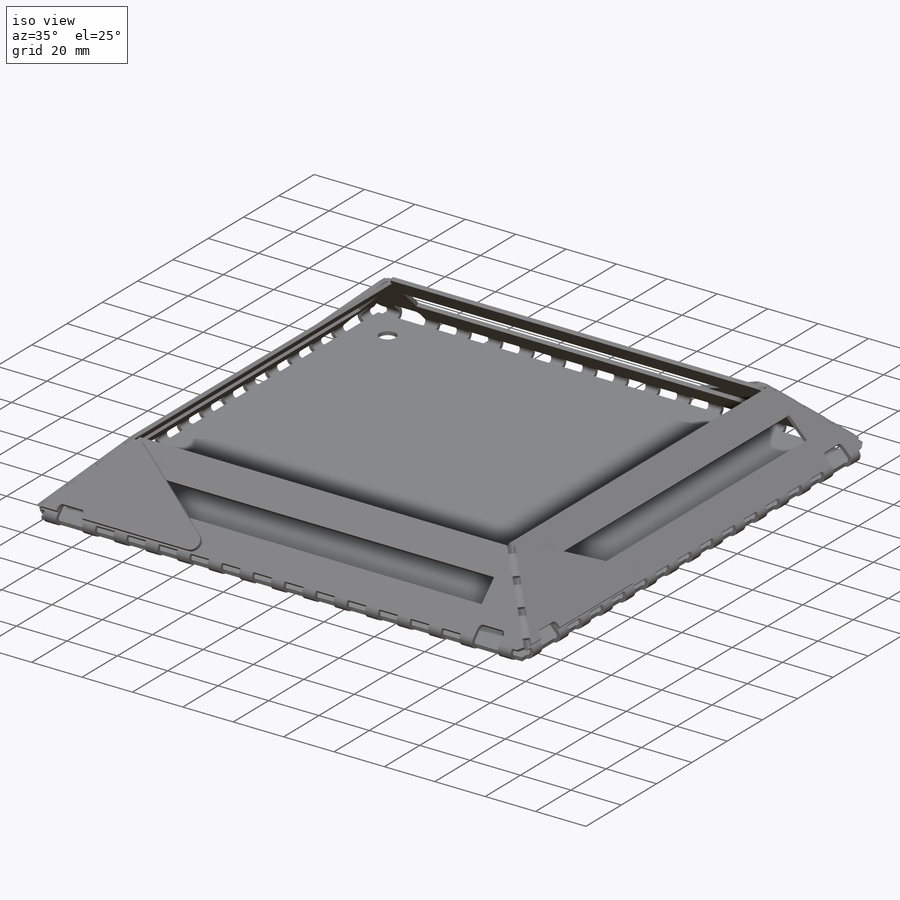
[diagram: iso view]
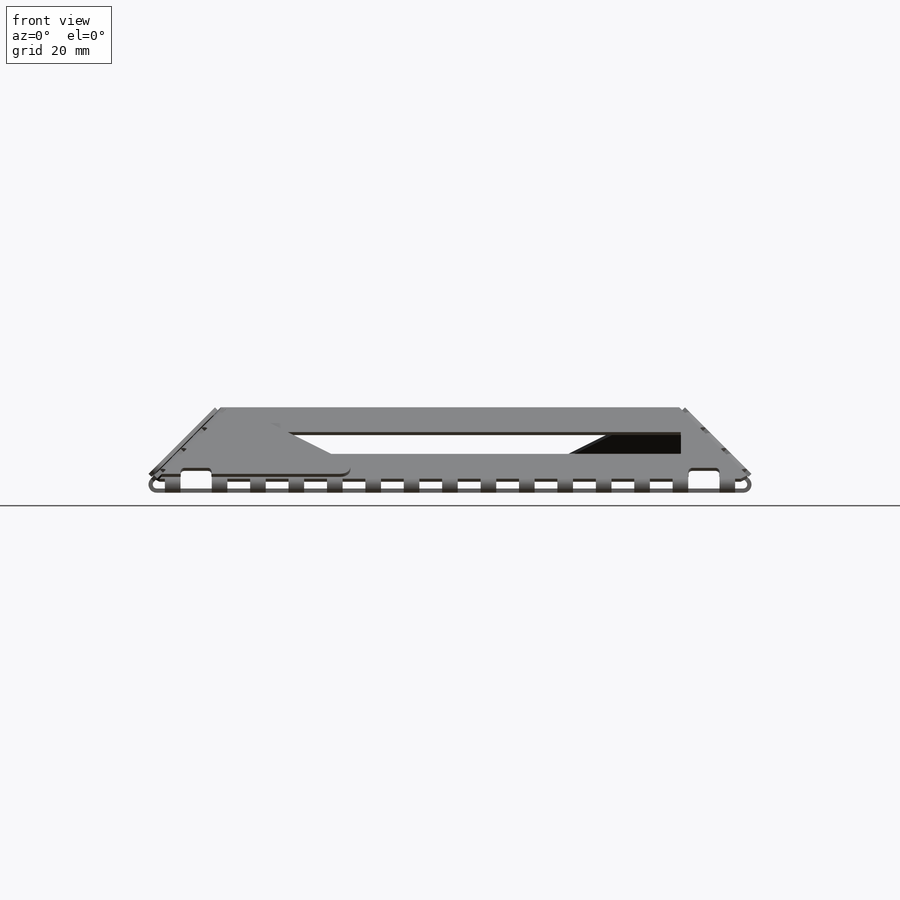
[diagram: front view]
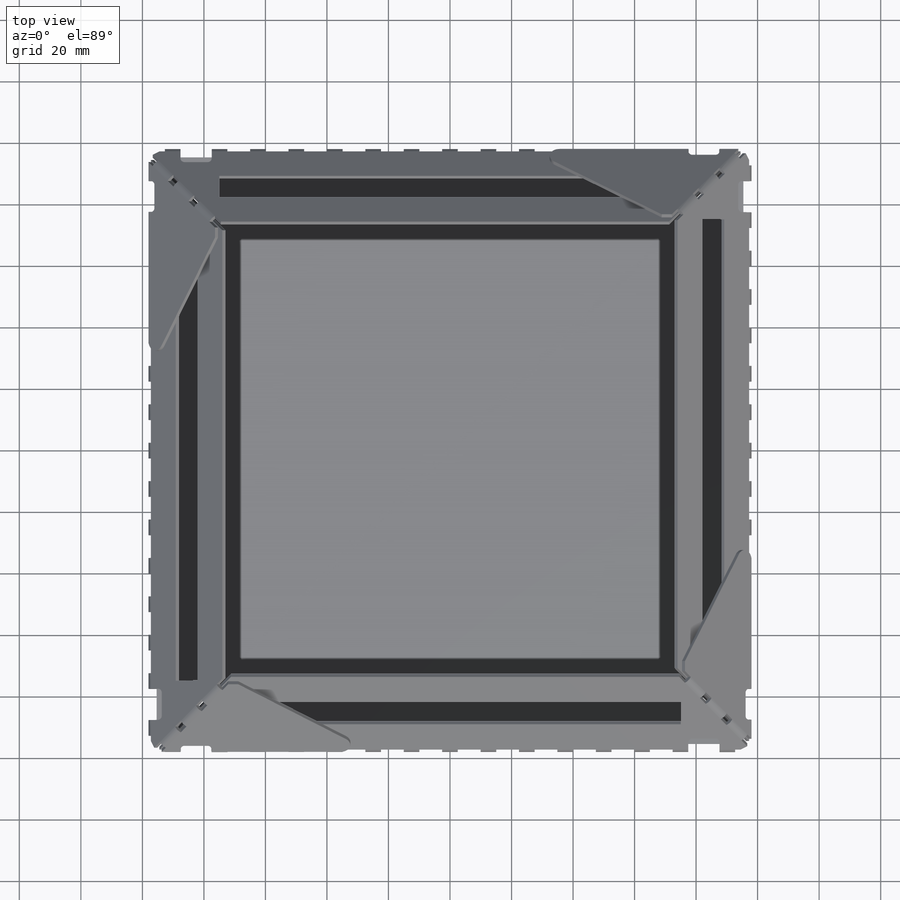
[diagram: top view]
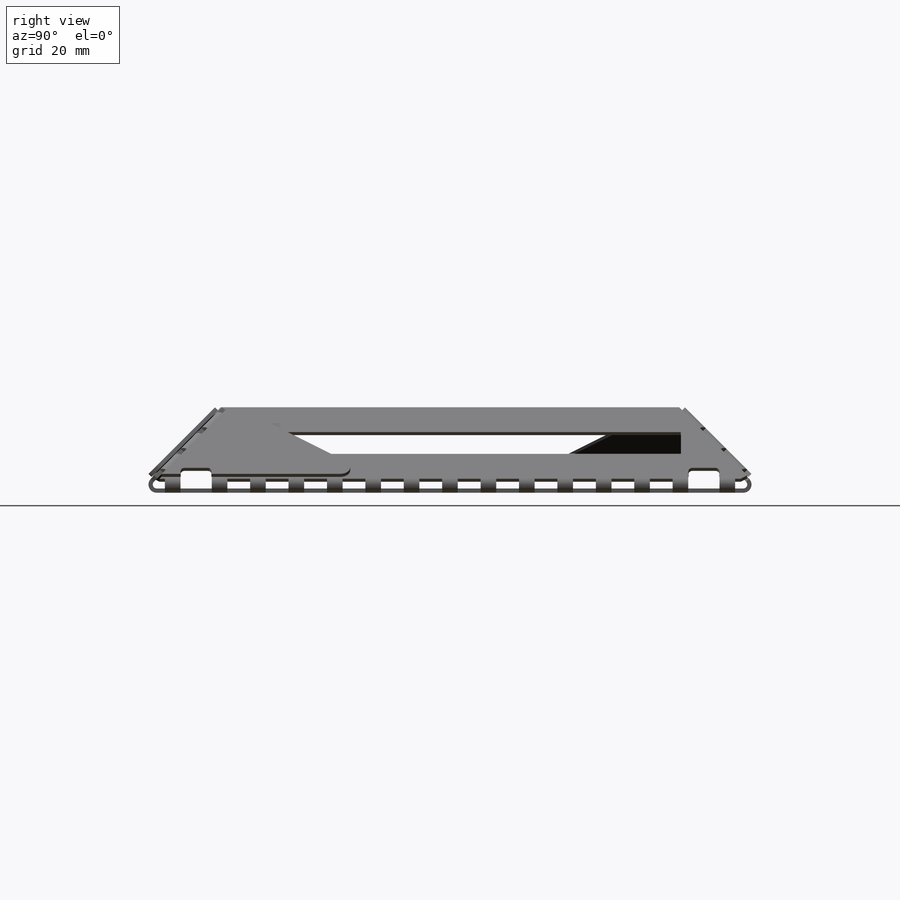
[diagram: right view]
SOLIDWORKS PART (.sldprt)
format: sldprt  version: not decoded by parser v0  size: 2,842,624 bytes
history: native  units: mm
features: sketch x45, sheet_metal_op x16, cut_extrude x6, plane x2, mirror x2, pattern_circular x2, material x1 + 15 further entries (+13 scaffold rows collapsed; 17 parser-record rows omitted)
feature tree (119):
  scaffold x13  (default folders/planes/origin — collapsed)
  material  "Material <not specified>"
  plane  "Diag Plane"
  sketch  "Centerline"
  sketch  "Base Sketch"  dims[c1.D2=6.35mm c1.D1=196.85mm c1.D3=15.875mm c2.D1=0.7366mm c2.D2=0.5 c2.D3=0.0mm c2.D6=500.0mm]
  sheet_metal_op  "Base-Flange1"
  plane  "Side Sketch Plane"
  sketch  "Side Sketch"  dims[c1.D1=196.85mm c2.D1=45.0deg c2.D2=25.4mm c3.D1=1.27mm c3.D4=135.0deg c3.D5=1.0 c3.D8=1.27mm c3.D9=1.27mm c4.D1=1.27mm c4.D4=135.0deg c4.D5=2.0 c4.D8=1.27mm c4.D9=1.27mm c5.D1=1.27mm c5.D4=135.0deg c5.D5=3.0 c5.D8=1.27mm c5.D9=1.27mm c6.D1=1.27mm c6.D4=135.0deg c6.D5=4.0 c6.D8=1.27mm c6.D9=1.27mm c7.D1=0.7366mm c7.D2=500.0mm c7.D3=0.0mm c8.D2=0.0mm c8.D3=0.0mm]
  sketch  "Sketch20"  dims[c1.D1=1.27mm c1.D4=60.0deg c1.D5=5.0 c1.D8=1.27mm c1.D9=1.27mm c2.D1=0.7366mm c2.D2=500.0mm c2.D3=0.0mm c2.D6=0.0mm c2.D7=~154.748975mm]
  sketch  "Sketch27"  dims[c1.D1=1.27mm c1.D4=60.0deg c1.D5=6.0 c1.D8=1.27mm c1.D9=1.27mm c2.D1=0.7366mm c2.D2=500.0mm c2.D3=0.0mm c2.D6=0.0mm c2.D7=~154.748975mm]
  sketch  "Sketch30"  dims[c1.D1=1.27mm c1.D4=60.0deg c1.D5=7.0 c1.D8=1.27mm c1.D9=1.27mm c2.D1=0.7366mm c2.D2=500.0mm c2.D3=0.0mm c2.D6=0.0mm c2.D7=~154.748975mm]
  sketch  "Sketch33"  dims[c1.D1=1.27mm c1.D4=60.0deg c1.D5=8.0 c1.D8=1.27mm c1.D9=1.27mm c2.D1=0.7366mm c2.D2=500.0mm c2.D3=0.0mm c2.D6=0.0mm c2.D7=~155.641077mm]
  sketch  "Sketch34"
  cut_extrude  "Cut Top & Bottom"  Depth=2.54mm
  sketch  "Sketch35"
  cut_extrude  "Cut Sides"  Depth=2.54mm
  sketch  "Sketch37"  dims[D1=1.27mm D2=7.62mm]
  cut_extrude  "Wire Slot"  Depth=2.54mm
  mirror  "Wire Slot Mirror"
  mirror  "Wire Slot Diag"
  parser-record x17  (decoder bookkeeping rows leaked as tree rows — omitted from the tree; the rows remain in map.json)
  sketch  "Sketch42"
  cut_extrude  "Wire slot fixup"  Depth=2.54mm
  sketch  "Perforations Sketch"  dims[c1.D1=5.08mm c1.D2=5.08mm c1.D3=~8.466667mm c2.D2=12.0 c2.D4=3.0]
  cut_extrude  "Perforations"  Depth=2.54mm
  pattern_circular  "Perforation Symmetry"  Count=4 Angle=90deg
  sketch  "Sketch44"  dims[D1=10.0mm D2=150.0mm]
  cut_extrude  "LED Stencil"  Depth=2.54mm
  pattern_circular  "LED Symmetry"  Count=4 Angle=90deg
  sketch  "Bend-Lines1"
  sketch  "Bounding-Box1"
  sheet_metal_op  "Sheet-Metal1"
  "Flat-Pattern1"
  sketch  "Bend-Lines2"
  sketch  "Bounding-Box2"
  sheet_metal_op  "Sheet-Metal4"
  "Flat-Pattern1"
  sketch  "Bend-Lines2"
  sketch  "Bounding-Box2"
  sheet_metal_op  "Sheet-Metal5"
  "Flat-Pattern1"
  sketch  "Bend-Lines2"
  sketch  "Bounding-Box2"
  sheet_metal_op  "Sheet-Metal6"
  "Flat-Pattern1"
  sketch  "Bend-Lines2"
  sketch  "Bounding-Box2"
  sheet_metal_op  "Sheet-Metal7"
  "Flat-Pattern1"
  sketch  "Bend-Lines2"
  sketch  "Bounding-Box2"
  sheet_metal_op  "Sheet-Metal8"
  "Flat-Pattern1"
  sketch  "Bend-Lines2"
  sketch  "Bounding-Box2"
  sheet_metal_op  "Sheet-Metal9"
  "Flat-Pattern1"
  sketch  "Bend-Lines2"
  sketch  "Bounding-Box2"
  sheet_metal_op  "Sheet-Metal10"
  "Flat-Pattern1"
  sketch  "Bend-Lines2"
  sketch  "Bounding-Box2"
  sheet_metal_op  "Sheet-Metal11"
  "Flat-Pattern1"
  sketch  "Bend-Lines2"
  sketch  "Bounding-Box2"
  sheet_metal_op  "Sheet-Metal12"
  "Flat-Pattern1"
  sketch  "Bend-Lines2"
  sketch  "Bounding-Box2"
  sheet_metal_op  "Sheet-Metal14"
  "Flat-Pattern1"
  sketch  "Bend-Lines2"
  sketch  "Bounding-Box2"
  sheet_metal_op  "Sheet-Metal15"
  "Flat-Pattern1"
  sketch  "Bend-Lines2"
  sketch  "Bounding-Box2"
  sheet_metal_op  "Sheet-Metal16"
  "Flat-Pattern1"
  sketch  "Bend-Lines2"
  sketch  "Bounding-Box2"
  sheet_metal_op  "Sheet-Metal17"
  "Flat-Pattern1"
  sketch  "Bend-Lines2"
  sketch  "Bounding-Box2"
  sheet_metal_op  "Sheet-Metal18"
  "Flat-Pattern1"
  sketch  "Bend-Lines2"
  sketch  "Bounding-Box2"
decode coverage: 17 of 71 modeling features carry decoded parameters; 15 rows unclassified (native names shown)
note: ~ marks probable driven/reference dimensions
note: suppression state not decoded; provenance and decode notes live in map.json
